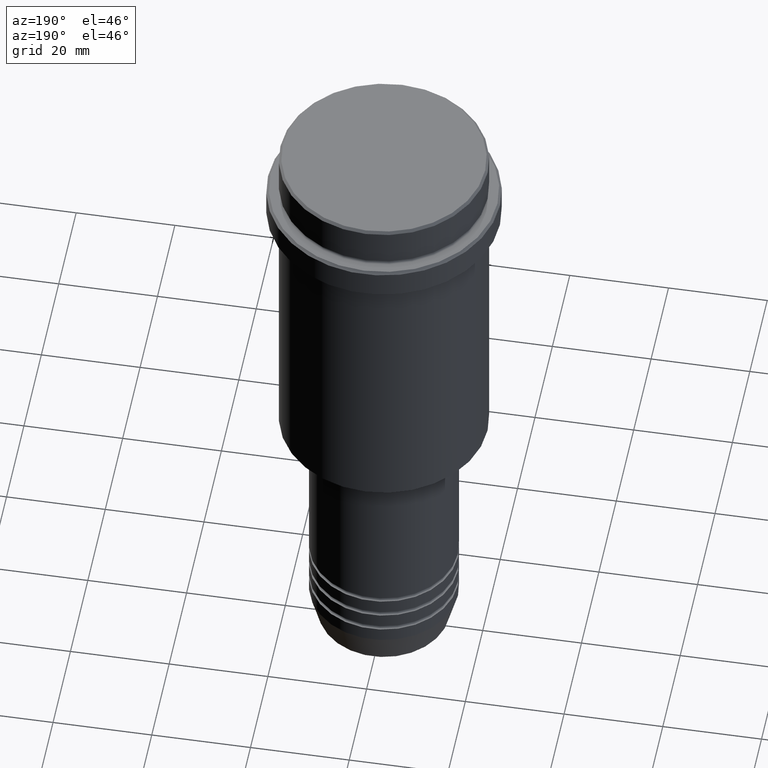
[diagram: clean part render]
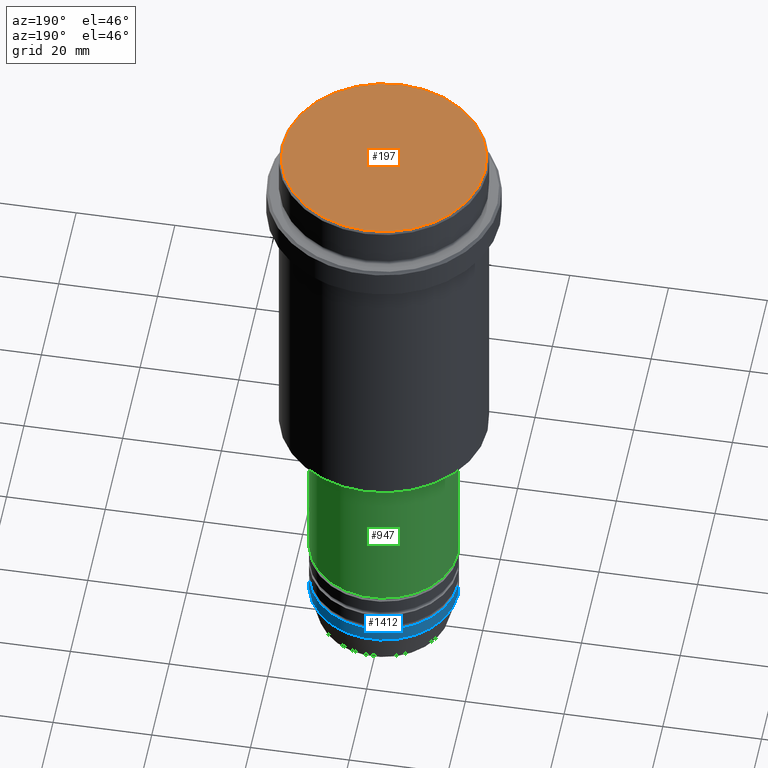
[diagram: same view with three faces highlighted in distinct colors, each labeled with its STEP entity id]
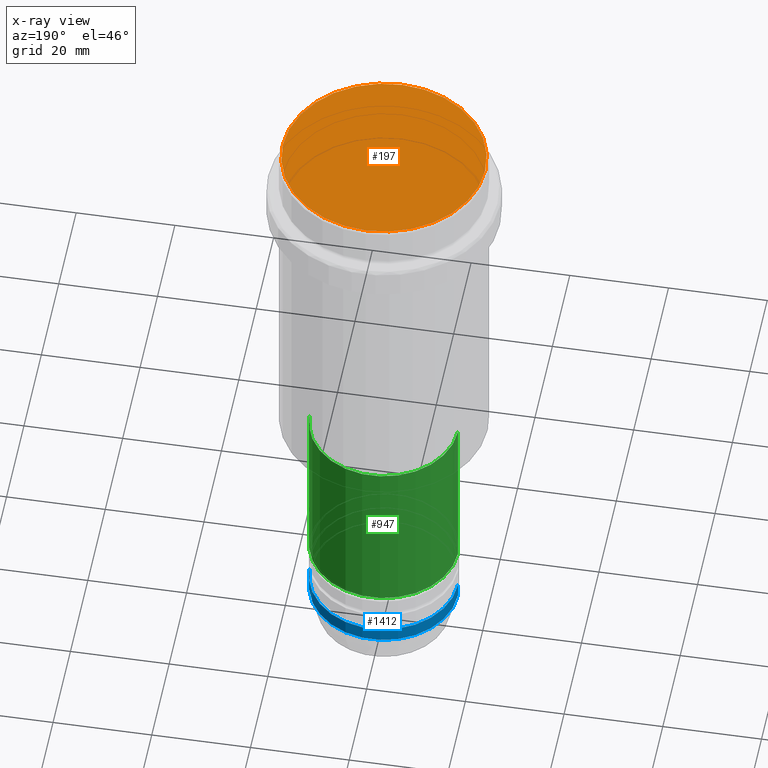
[diagram: x-ray of the same camera — body ghosted, the three highlighted faces saturated]
A machine part, auxiliary view with three faces highlighted in distinct colors.
The next image is the same camera in x-ray (body ghosted, the three faces saturated) — at least one of them is partly hidden behind the body in this view.
Their STEP definitions:

[orange] entity #197 — the highlighted planar face has unit normal (0, -0, 1).
#8 = PLANE ( 'NONE',  #452 ) ;
#19 = CARTESIAN_POINT ( 'NONE',  ( 0.000000000000000000, 0.000000000000000000, 0.000000000000000000 ) ) ;
#104 = EDGE_LOOP ( 'NONE', ( #746, #388 ) ) ;
#169 = DIRECTION ( 'NONE',  ( -0.000000000000000000, -0.000000000000000000, 1.000000000000000000 ) ) ;
#197 = ADVANCED_FACE ( 'NONE', ( #789 ), #8, .T. ) ;
#230 = DIRECTION ( 'NONE',  ( 1.000000000000000000, 0.000000000000000000, 0.000000000000000000 ) ) ;
#270 = CARTESIAN_POINT ( 'NONE',  ( 20.49999999999997513, 2.541142108230756691E-15, 0.000000000000000000 ) ) ;
#337 = CIRCLE ( 'NONE', #977, 20.49999999999997513 ) ;
#350 = DIRECTION ( 'NONE',  ( 0.000000000000000000, -0.000000000000000000, 1.000000000000000000 ) ) ;
#388 = ORIENTED_EDGE ( 'NONE', *, *, #1270, .T. ) ;
#452 = AXIS2_PLACEMENT_3D ( 'NONE', #19, #350, #230 ) ;
#462 = CARTESIAN_POINT ( 'NONE',  ( 0.000000000000000000, 0.000000000000000000, 0.000000000000000000 ) ) ;
#510 = CARTESIAN_POINT ( 'NONE',  ( 0.000000000000000000, 0.000000000000000000, 0.000000000000000000 ) ) ;
#710 = AXIS2_PLACEMENT_3D ( 'NONE', #510, #169, #1166 ) ;
#728 = EDGE_CURVE ( 'NONE', #881, #834, #337, .T. ) ;
#746 = ORIENTED_EDGE ( 'NONE', *, *, #728, .T. ) ;
#789 = FACE_OUTER_BOUND ( 'NONE', #104, .T. ) ;
#834 = VERTEX_POINT ( 'NONE', #270 ) ;
#881 = VERTEX_POINT ( 'NONE', #1072 ) ;
#977 = AXIS2_PLACEMENT_3D ( 'NONE', #462, #1226, #1237 ) ;
#1072 = CARTESIAN_POINT ( 'NONE',  ( -20.49999999999997513, 0.000000000000000000, 0.000000000000000000 ) ) ;
#1166 = DIRECTION ( 'NONE',  ( 1.000000000000000000, 0.000000000000000000, 0.000000000000000000 ) ) ;
#1226 = DIRECTION ( 'NONE',  ( -0.000000000000000000, -0.000000000000000000, 1.000000000000000000 ) ) ;
#1237 = DIRECTION ( 'NONE',  ( 1.000000000000000000, 0.000000000000000000, 0.000000000000000000 ) ) ;
#1270 = EDGE_CURVE ( 'NONE', #834, #881, #1298, .T. ) ;
#1298 = CIRCLE ( 'NONE', #710, 20.49999999999997513 ) ;

[blue] entity #1412 — the highlighted cylindrical surface (partial cylindrical patch) has radius 15 mm, axis along (-0, -0, 1).
#49 = DIRECTION ( 'NONE',  ( -0.000000000000000000, -0.000000000000000000, 1.000000000000000000 ) ) ;
#53 = ORIENTED_EDGE ( 'NONE', *, *, #839, .T. ) ;
#79 = CYLINDRICAL_SURFACE ( 'NONE', #229, 15.00000000000000000 ) ;
#89 = EDGE_CURVE ( 'NONE', #919, #114, #896, .T. ) ;
#112 = CIRCLE ( 'NONE', #785, 15.00000000000000000 ) ;
#114 = VERTEX_POINT ( 'NONE', #861 ) ;
#153 = LINE ( 'NONE', #504, #1387 ) ;
#192 = CARTESIAN_POINT ( 'NONE',  ( -15.00000000000000000, 1.836970198721029589E-15, 0.000000000000000000 ) ) ;
#228 = AXIS2_PLACEMENT_3D ( 'NONE', #764, #525, #631 ) ;
#229 = AXIS2_PLACEMENT_3D ( 'NONE', #1183, #661, #984 ) ;
#353 = CARTESIAN_POINT ( 'NONE',  ( -15.00000000000000000, 1.836970198721029589E-15, -123.0000000000000000 ) ) ;
#454 = ORIENTED_EDGE ( 'NONE', *, *, #89, .F. ) ;
#458 = ORIENTED_EDGE ( 'NONE', *, *, #1349, .T. ) ;
#504 = CARTESIAN_POINT ( 'NONE',  ( 15.00000000000000000, 0.000000000000000000, 0.000000000000000000 ) ) ;
#525 = DIRECTION ( 'NONE',  ( -0.000000000000000000, -0.000000000000000000, 1.000000000000000000 ) ) ;
#611 = LINE ( 'NONE', #192, #1318 ) ;
#631 = DIRECTION ( 'NONE',  ( 1.000000000000000000, 0.000000000000000000, 0.000000000000000000 ) ) ;
#661 = DIRECTION ( 'NONE',  ( -0.000000000000000000, -0.000000000000000000, 1.000000000000000000 ) ) ;
#718 = VERTEX_POINT ( 'NONE', #1091 ) ;
#764 = CARTESIAN_POINT ( 'NONE',  ( 0.000000000000000000, 0.000000000000000000, -120.0000000000000000 ) ) ;
#771 = FACE_OUTER_BOUND ( 'NONE', #1348, .T. ) ;
#785 = AXIS2_PLACEMENT_3D ( 'NONE', #1295, #956, #859 ) ;
#839 = EDGE_CURVE ( 'NONE', #1081, #114, #611, .T. ) ;
#859 = DIRECTION ( 'NONE',  ( 1.000000000000000000, 0.000000000000000000, 0.000000000000000000 ) ) ;
#861 = CARTESIAN_POINT ( 'NONE',  ( -15.00000000000000000, 1.836970198721029589E-15, -120.0000000000000000 ) ) ;
#896 = CIRCLE ( 'NONE', #228, 15.00000000000000000 ) ;
#919 = VERTEX_POINT ( 'NONE', #1409 ) ;
#956 = DIRECTION ( 'NONE',  ( -0.000000000000000000, -0.000000000000000000, 1.000000000000000000 ) ) ;
#984 = DIRECTION ( 'NONE',  ( 1.000000000000000000, 0.000000000000000000, 0.000000000000000000 ) ) ;
#1045 = DIRECTION ( 'NONE',  ( -0.000000000000000000, -0.000000000000000000, 1.000000000000000000 ) ) ;
#1081 = VERTEX_POINT ( 'NONE', #353 ) ;
#1091 = CARTESIAN_POINT ( 'NONE',  ( 15.00000000000000000, 0.000000000000000000, -123.0000000000000000 ) ) ;
#1183 = CARTESIAN_POINT ( 'NONE',  ( 0.000000000000000000, 0.000000000000000000, 0.000000000000000000 ) ) ;
#1189 = EDGE_CURVE ( 'NONE', #718, #919, #153, .T. ) ;
#1245 = ORIENTED_EDGE ( 'NONE', *, *, #1189, .F. ) ;
#1295 = CARTESIAN_POINT ( 'NONE',  ( 0.000000000000000000, 0.000000000000000000, -123.0000000000000000 ) ) ;
#1318 = VECTOR ( 'NONE', #1045, 1000.000000000000000 ) ;
#1348 = EDGE_LOOP ( 'NONE', ( #458, #53, #454, #1245 ) ) ;
#1349 = EDGE_CURVE ( 'NONE', #718, #1081, #112, .T. ) ;
#1387 = VECTOR ( 'NONE', #49, 1000.000000000000000 ) ;
#1409 = CARTESIAN_POINT ( 'NONE',  ( 15.00000000000000000, 0.000000000000000000, -120.0000000000000000 ) ) ;
#1412 = ADVANCED_FACE ( 'NONE', ( #771 ), #79, .T. ) ;

[green] entity #947 — the highlighted cylindrical surface (partial cylindrical patch) has radius 15 mm, axis along (-0, -0, 1).
#58 = CIRCLE ( 'NONE', #619, 15.00000000000000000 ) ;
#68 = EDGE_CURVE ( 'NONE', #1392, #1047, #58, .T. ) ;
#217 = DIRECTION ( 'NONE',  ( 1.000000000000000000, 0.000000000000000000, 0.000000000000000000 ) ) ;
#220 = AXIS2_PLACEMENT_3D ( 'NONE', #1383, #406, #310 ) ;
#244 = ORIENTED_EDGE ( 'NONE', *, *, #677, .T. ) ;
#305 = DIRECTION ( 'NONE',  ( 1.000000000000000000, 0.000000000000000000, 0.000000000000000000 ) ) ;
#310 = DIRECTION ( 'NONE',  ( 1.000000000000000000, 0.000000000000000000, 0.000000000000000000 ) ) ;
#352 = VERTEX_POINT ( 'NONE', #695 ) ;
#378 = CARTESIAN_POINT ( 'NONE',  ( 15.00000000000000000, 0.000000000000000000, -110.9999999999998863 ) ) ;
#404 = VECTOR ( 'NONE', #1170, 1000.000000000000000 ) ;
#406 = DIRECTION ( 'NONE',  ( -0.000000000000000000, -0.000000000000000000, 1.000000000000000000 ) ) ;
#438 = ORIENTED_EDGE ( 'NONE', *, *, #826, .F. ) ;
#539 = CYLINDRICAL_SURFACE ( 'NONE', #1406, 15.00000000000000000 ) ;
#549 = CARTESIAN_POINT ( 'NONE',  ( 15.00000000000000000, 0.000000000000000000, -76.00000000000001421 ) ) ;
#558 = EDGE_CURVE ( 'NONE', #1212, #352, #1202, .T. ) ;
#592 = ORIENTED_EDGE ( 'NONE', *, *, #68, .F. ) ;
#617 = LINE ( 'NONE', #954, #404 ) ;
#619 = AXIS2_PLACEMENT_3D ( 'NONE', #1386, #650, #305 ) ;
#650 = DIRECTION ( 'NONE',  ( -0.000000000000000000, -0.000000000000000000, 1.000000000000000000 ) ) ;
#657 = FACE_OUTER_BOUND ( 'NONE', #1235, .T. ) ;
#664 = DIRECTION ( 'NONE',  ( -0.000000000000000000, -0.000000000000000000, 1.000000000000000000 ) ) ;
#677 = EDGE_CURVE ( 'NONE', #352, #1047, #1327, .T. ) ;
#695 = CARTESIAN_POINT ( 'NONE',  ( -15.00000000000000000, 1.836970198721029589E-15, -110.9999999999998863 ) ) ;
#804 = VECTOR ( 'NONE', #1142, 1000.000000000000000 ) ;
#826 = EDGE_CURVE ( 'NONE', #1212, #1392, #617, .T. ) ;
#890 = ORIENTED_EDGE ( 'NONE', *, *, #558, .T. ) ;
#947 = ADVANCED_FACE ( 'NONE', ( #657 ), #539, .T. ) ;
#954 = CARTESIAN_POINT ( 'NONE',  ( 15.00000000000000000, 0.000000000000000000, 0.000000000000000000 ) ) ;
#1032 = CARTESIAN_POINT ( 'NONE',  ( -15.00000000000000000, 1.836970198721029589E-15, 0.000000000000000000 ) ) ;
#1047 = VERTEX_POINT ( 'NONE', #1236 ) ;
#1142 = DIRECTION ( 'NONE',  ( -0.000000000000000000, -0.000000000000000000, 1.000000000000000000 ) ) ;
#1170 = DIRECTION ( 'NONE',  ( -0.000000000000000000, -0.000000000000000000, 1.000000000000000000 ) ) ;
#1202 = CIRCLE ( 'NONE', #220, 15.00000000000000000 ) ;
#1212 = VERTEX_POINT ( 'NONE', #378 ) ;
#1235 = EDGE_LOOP ( 'NONE', ( #890, #244, #592, #438 ) ) ;
#1236 = CARTESIAN_POINT ( 'NONE',  ( -15.00000000000000000, 1.836970198721029589E-15, -76.00000000000001421 ) ) ;
#1310 = CARTESIAN_POINT ( 'NONE',  ( 0.000000000000000000, 0.000000000000000000, 0.000000000000000000 ) ) ;
#1327 = LINE ( 'NONE', #1032, #804 ) ;
#1383 = CARTESIAN_POINT ( 'NONE',  ( 0.000000000000000000, 0.000000000000000000, -110.9999999999998863 ) ) ;
#1386 = CARTESIAN_POINT ( 'NONE',  ( 0.000000000000000000, 0.000000000000000000, -76.00000000000001421 ) ) ;
#1392 = VERTEX_POINT ( 'NONE', #549 ) ;
#1406 = AXIS2_PLACEMENT_3D ( 'NONE', #1310, #664, #217 ) ;